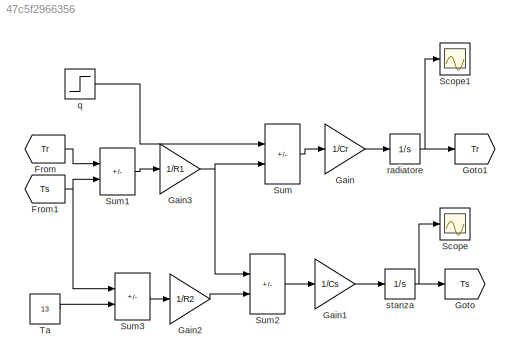
MODEL slx_47c5f2966356
KIND model
CONFIG AbsTol = auto
CONFIG EnableMultiTasking = off
CONFIG FixedStep = auto
CONFIG MaxStep = auto
CONFIG MinStep = auto
CONFIG RelTol = 1e-3
CONFIG SampleTimeConstraint = Unconstrained
CONFIG SolverName = VariableStepAuto
CONFIG StartTime = 0.0
CONFIG StopTime = 10000
BLOCK [From] From
  GotoTag = Tr
BLOCK [From] From1
  GotoTag = Ts
BLOCK [Gain] Gain
  Gain = 1/Cr
BLOCK [Gain] Gain1
  Gain = 1/Cs
BLOCK [Gain] Gain2
  Gain = 1/R2
BLOCK [Gain] Gain3
  Gain = 1/R1
BLOCK [Goto] Goto
  GotoTag = Ts
BLOCK [Goto] Goto1
  GotoTag = Tr
BLOCK [Scope] Scope
  Floating = off
  NumInputPorts = 1
  ScopeSpecificationString = Simulink.scopes.TimeScopeBlockCfg('CurrentConfiguration', extmgr.ConfigurationSet(extmgr.Configuration('Core','General UI',true),extmgr.Configuration('Core','Source UI',true),extmgr.Configuration('Sources','WiredSimulink',true),extmgr.Configuration('Visuals','Time Domain',true,'SerializedDisplays',{struct('MinYLimReal','6.1251','MaxYLimReal','24.87409','YLabelReal','','MinYLimMag','6.1251','MaxYLi...<+1350ch>
BLOCK [Scope] Scope1
  Floating = off
  NumInputPorts = 1
  ScopeSpecificationString = Simulink.scopes.TimeScopeBlockCfg('CurrentConfiguration', extmgr.ConfigurationSet(extmgr.Configuration('Core','General UI',true),extmgr.Configuration('Core','Source UI',true),extmgr.Configuration('Sources','WiredSimulink',true,'DataLoggingVariableName','ScopeData1'),extmgr.Configuration('Visuals','Time Domain',true,'SerializedDisplays',{struct('MinYLimReal','6.55951','MaxYLimReal','21.49339','YLab...<+1415ch>
BLOCK [Sum] Sum
  IconShape = rectangular
  Inputs = +-
BLOCK [Sum] Sum1
  IconShape = rectangular
  Inputs = +-
BLOCK [Sum] Sum2
  IconShape = rectangular
  Inputs = +-
BLOCK [Sum] Sum3
  IconShape = rectangular
  Inputs = +-
BLOCK [Constant] Ta
  Value = 13
BLOCK [Step] q
  SampleTime = 0
  Time = 250
BLOCK [Integrator] radiatore
  InitialCondition = 20
BLOCK [Integrator] stanza
  InitialCondition = 8
NET From1:1 -> Sum1:2, Sum3:1
LINE From:1 -> Sum1:1
LINE Gain1:1 -> stanza:1
LINE Gain2:1 -> Sum2:2
NET Gain3:1 -> Sum2:1, Sum:2
LINE Gain:1 -> radiatore:1
LINE Sum1:1 -> Gain3:1
LINE Sum2:1 -> Gain1:1
LINE Sum3:1 -> Gain2:1
LINE Sum:1 -> Gain:1
LINE Ta:1 -> Sum3:2
LINE q:1 -> Sum:1
NET radiatore:1 -> Goto1:1, Scope1:1
NET stanza:1 -> Goto:1, Scope:1
note: NET lines group one-source signal fan-out (src -> all destinations, sorted); 1:1 wires keep LINE
